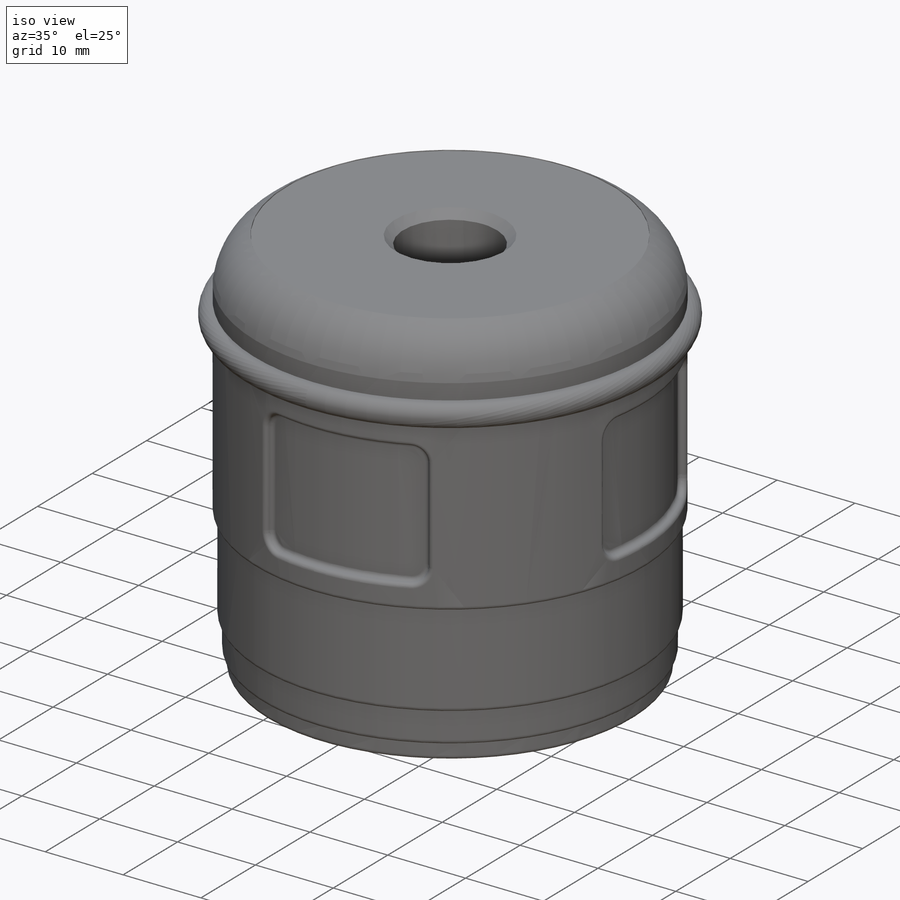
[diagram: iso view]
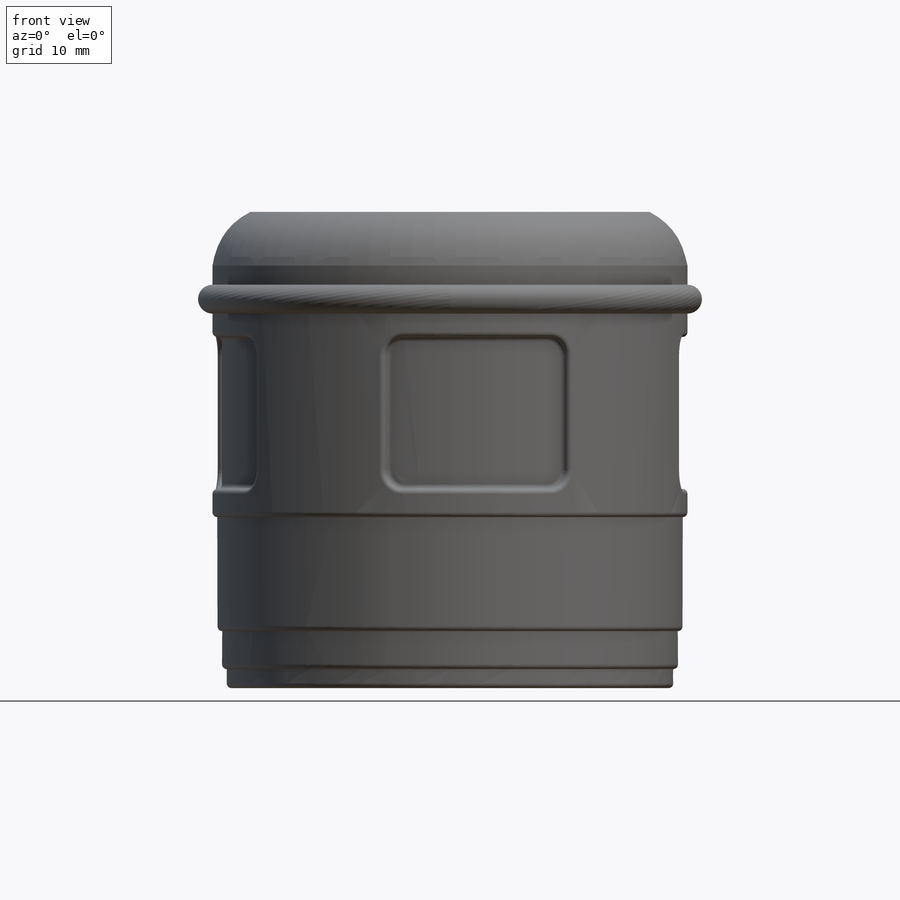
[diagram: front view]
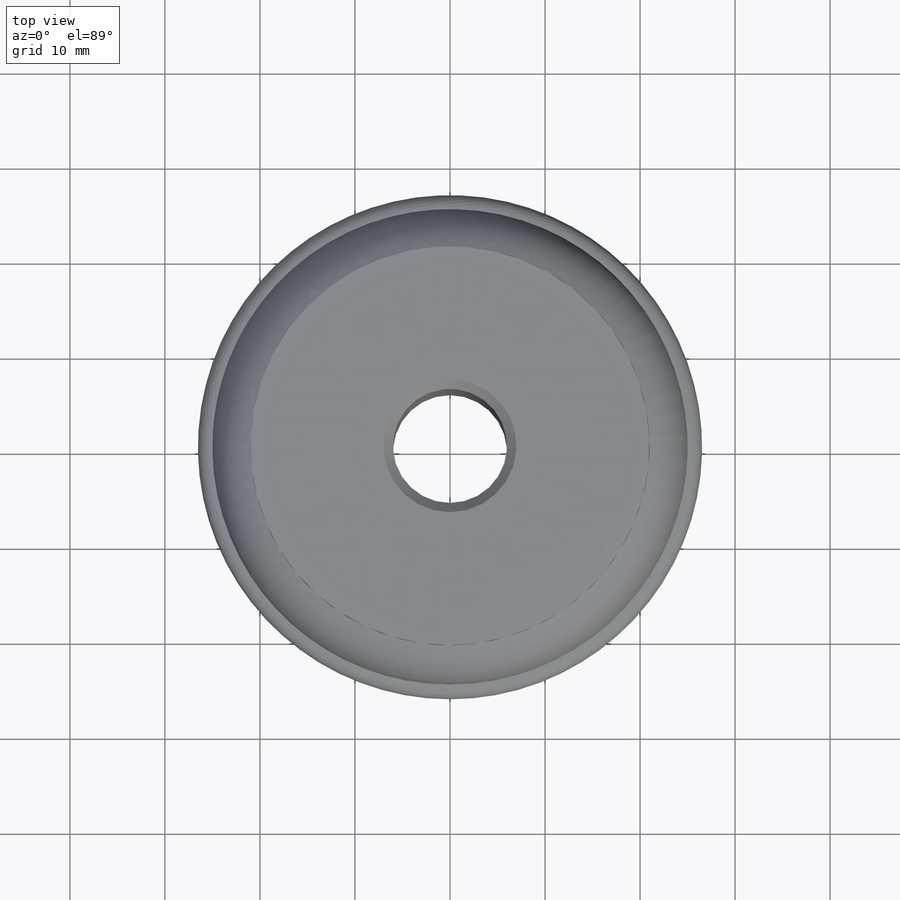
[diagram: top view]
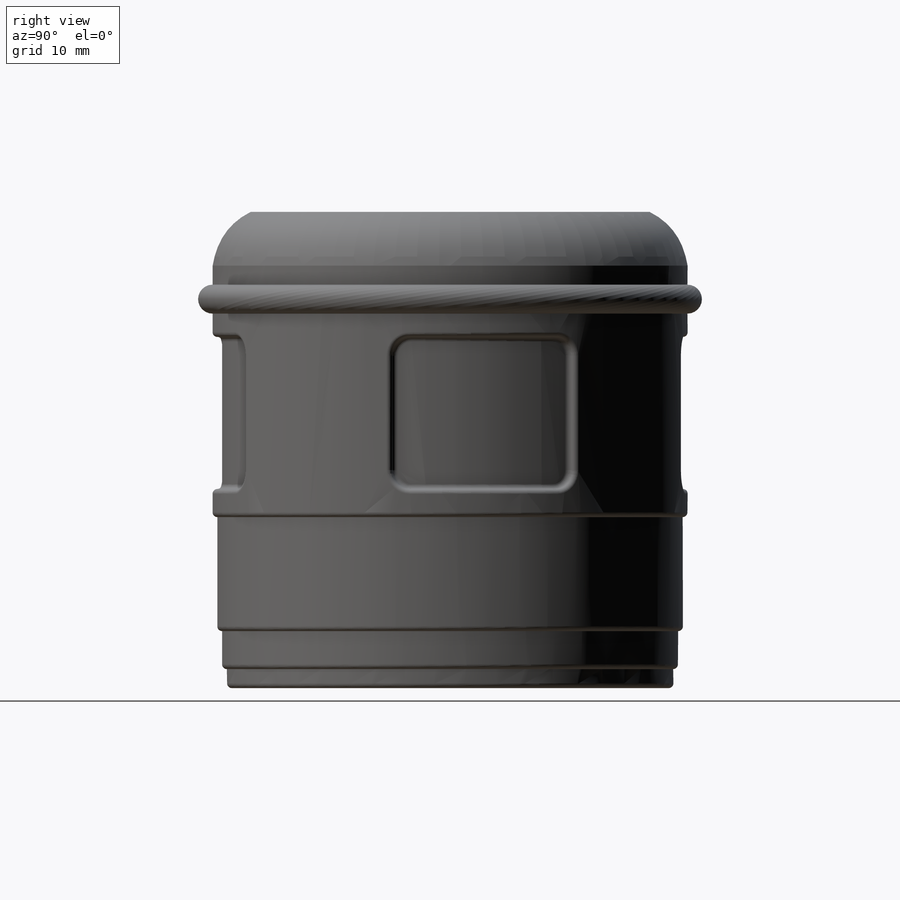
[diagram: right view]
SOLIDWORKS PART (.sldprt)
format: sldprt  version: not decoded by parser v0  size: 835,072 bytes
history: native  units: mm
features: sketch x8, revolve x2, extrude x2, cut_extrude x2, fillet x2, chamfer x2, material x1 (+13 scaffold rows collapsed)
feature tree (32):
  scaffold x13  (default folders/planes/origin — collapsed)
  material  "Material <not specified>"
  sketch  "Sketch1"  dims[D1=42.0mm]
  sketch  "Sketch2"  dims[D1=25.0mm D2=~7.534178mm]
  revolve  "Revolve1"  Angle=360deg
  sketch  "Sketch4"  dims[D1=42.0mm]
  extrude  "Boss-Extrude1"  Depth=60mm
  sketch  "Sketch5"  dims[c1.D1=50.0mm c1.D2=26.0mm c2.D1=23.5mm]
  revolve  "Revolve2"  Angle=360deg
  sketch  "Sketch3"  dims[D1=42.0mm]
  cut_extrude  "Cut-Extrude1"  Depth=60mm
  fillet  "Fillet2"  Radius=0.5mm
  sketch  "Sketch6"  dims[c1.D1=16.0mm c1.D2=7.0mm c2.D1=16.0mm c2.D2=7.0mm c2.D3=20.0mm c3.D2=4.0 c3.D1=1.0mm]
  fillet  "Fillet3"  Radius=0.5mm
  sketch  "Sketch8"  dims[D1=12.0mm]
  extrude  "Boss-Extrude2"  Depth=50mm
  sketch  "Sketch9"
  cut_extrude  "Cut-Extrude2"  Depth=10mm
  chamfer  "Chamfer2"  Distance=1mm Angle=45deg
  chamfer  "Chamfer3"  Distance=1mm Angle=45deg
decode coverage: 17 of 18 modeling features carry decoded parameters
note: ~ marks probable driven/reference dimensions
note: suppression state not decoded; provenance and decode notes live in map.json
